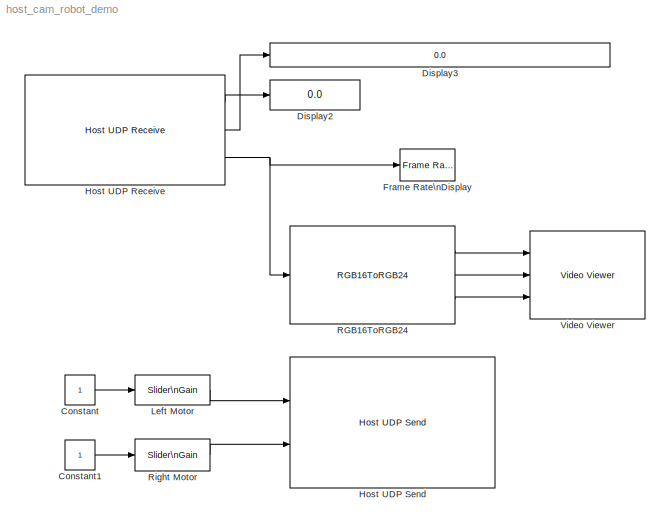
MODEL host_cam_robot_demo
KIND model
BLOCK [Constant] Constant
  OutDataType = fixdt(1, 16)
  OutScaling = 2^0
BLOCK [Constant] Constant1
  OutDataType = fixdt(1, 16)
  OutScaling = 2^0
BLOCK [Display] Display2
  Decimation = 1
  Lockdown = off
  Ports = [1]
BLOCK [Display] Display3
  Decimation = 1
  Lockdown = off
  Ports = [1]
BLOCK [Reference] Frame Rate\nDisplay  REF=vipsnks/Frame Rate\nDisplay
  DialogController = vipDDGCreate
  DialogControllerArgs = DataTag0
  Ports = [1]
  SourceBlock = vipsnks/Frame Rate\nDisplay
  SourceType = Frame Rate Display
  UpdateRate = 10
BLOCK [Reference] Host UDP Receive  REF=waijung_socket_lib/Host UDP Receive
  Ports = [0, 3]
  SourceBlock = waijung_socket_lib/Host UDP Receive
  SourceType = waijung_socket
  address = 192.168.1.21
  blockid = HostUDPReceive
  compat = 0
  conf = HostReceive
  datacount = 120*160
  datasource = BufferStream
  datatype = uint16
  echo = off
  inputportlabel = {}
  inputporttype = []
  inputportwidth = []
  options = [7,2,1,5000,1]
  optionstring = []
  outputportlabel = {'Remote Port','Remote IP(1:4)','Data(1:19200)'}
  outputporttype = [5,3,5]
  outputportwidth = [1,4,19200]
  port = 7
  portpinstr = 0
  porttype_double = 0
  porttype_int16 = 0
  porttype_int32 = 0
  porttype_int8 = 0
  porttype_single = 0
  porttype_uint16 = 0
  porttype_uint32 = 1
  porttype_uint8 = 0
  protocol = UDP
  sampletime = 0.01
  timeout = 5
  transfer = Blocking
BLOCK [Reference] Host UDP Send  REF=waijung_socket_lib/Host UDP Send
  Ports = [2]
  SourceBlock = waijung_socket_lib/Host UDP Send
  SourceType = waijung_socket
  address = 192.168.1.31
  blockid = HostUDPSend
  compat = 0
  conf = HostSend
  datacount = 2
  datasource = Ports
  datatype = uint8
  echo = off
  inputportlabel = {'D0 double','D1 double'}
  inputporttype = [0,0]
  inputportwidth = [1]
  options = [7,2,0,5000,0]
  optionstring = []
  outputportlabel = {}
  outputporttype = []
  outputportwidth = []
  port = 7
  portpinstr = 0
  porttype_double = 2
  porttype_int16 = 0
  porttype_int32 = 0
  porttype_int8 = 0
  porttype_single = 0
  porttype_uint16 = 0
  porttype_uint32 = 0
  porttype_uint8 = 0
  protocol = UDP
  sampletime = 0.1
  timeout = 5
  transfer = Blocking
  variableipport = off
BLOCK [Reference] Left Motor  REF=simulink/Math\nOperations/Slider\nGain
  FunctionWithSeparateData = off
  Ports = [1, 1]
  RTWMemSecDataConstants = Inherit from model
  RTWMemSecDataInternal = Inherit from model
  RTWMemSecDataParameters = Inherit from model
  RTWMemSecFuncExecute = Inherit from model
  RTWMemSecFuncInitTerm = Inherit from model
  ShowPortLabels = FromPortIcon
  SourceBlock = simulink/Math\nOperations/Slider\nGain
  SourceType = Slider Gain
  SystemSampleTime = -1
  gain = 0
  high = 100
  low = -100
BLOCK [Reference] RGB16ToRGB24  REF=waijung_image_sensor_lib/RGB16ToRGB24
  Ports = [1, 3]
  SourceBlock = waijung_image_sensor_lib/RGB16ToRGB24
  SourceType = waijung_image_processing
  blockid = RGB16ToRGB24
  colorseparate = on
  column = 120
  compat = 0
  conf = RGB16ToRGB24
  inputalignment = RGB
  inputportlabel = {'Input'}
  inputporttype = [5]
  inputportwidth = [19200]
  optionstring = []
  outputalignment = BGR
  outputportlabel = {'B','G','R'}
  outputporttype = [3  3 3]
  outputportwidth = [120 120 120]
  portpinstr = 0
  row = 160
  sampletime = -1
  simparams = [0 160 0 1]
BLOCK [Reference] Right Motor  REF=simulink/Math\nOperations/Slider\nGain
  FunctionWithSeparateData = off
  Ports = [1, 1]
  RTWMemSecDataConstants = Inherit from model
  RTWMemSecDataInternal = Inherit from model
  RTWMemSecDataParameters = Inherit from model
  RTWMemSecFuncExecute = Inherit from model
  RTWMemSecFuncInitTerm = Inherit from model
  ShowPortLabels = FromPortIcon
  SourceBlock = simulink/Math\nOperations/Slider\nGain
  SourceType = Slider Gain
  SystemSampleTime = -1
  gain = 0
  high = 100
  low = -100
BLOCK [Reference] Video Viewer  REF=vipsnks/Video Viewer
  AxisZoom = on
  DialogControllerArgs = DataTag2
  FigPos = [194 953 480 382]
  OpenAtMdlStart = on
  Ports = [3]
  SourceBlock = vipsnks/Video Viewer
  SourceType = Video Viewer
  UserData = DataTag1
  UserDataPersistent = on
  colormapValue = gray(256)
  imagePorts = Separate color signals
  inputType = Obsolete7b
  maxInputVal = 255
  minInputVal = 0
  specRange = off
  trueSizedOnce = off
  useColorMap = off
LINE Constant1:1 -> Right Motor:1
LINE Constant:1 -> Left Motor:1
LINE Host UDP Receive:1 -> Display2:1
LINE Host UDP Receive:2 -> Display3:1
NET Host UDP Receive:3 -> Frame Rate\nDisplay:1, RGB16ToRGB24:1
LINE Left Motor:1 -> Host UDP Send:1
LINE RGB16ToRGB24:1 -> Video Viewer:1
LINE RGB16ToRGB24:2 -> Video Viewer:2
LINE RGB16ToRGB24:3 -> Video Viewer:3
LINE Right Motor:1 -> Host UDP Send:2
note: NET lines group one-source signal fan-out (src -> all destinations, sorted); 1:1 wires keep LINE
